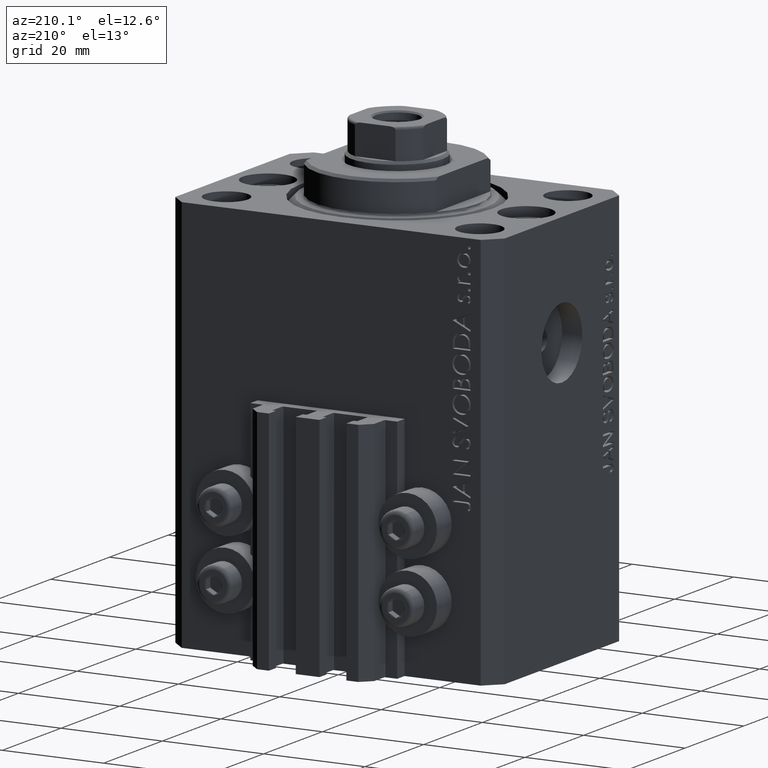
[diagram: clean part render]
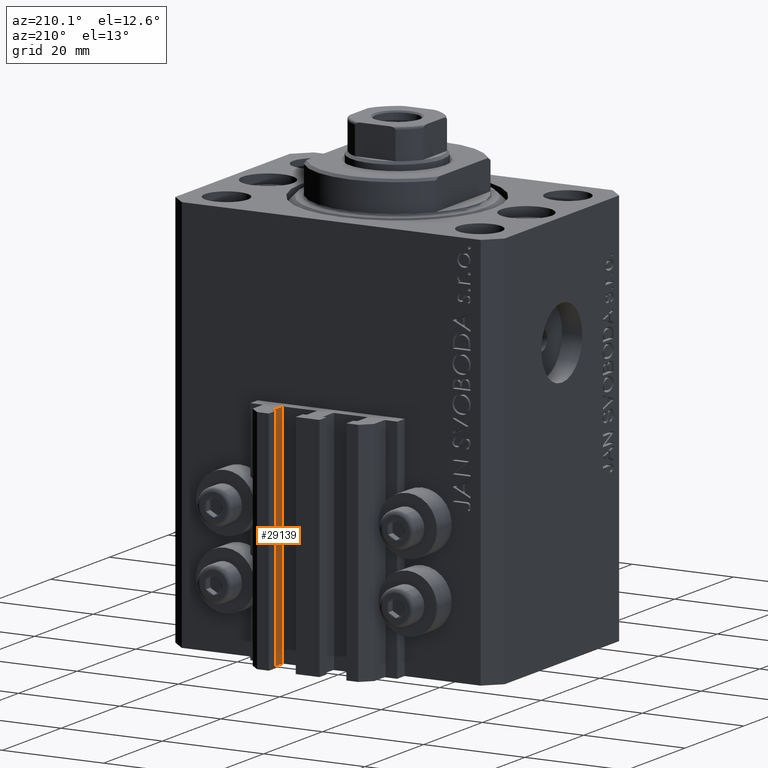
[diagram: same view with one face highlighted and labeled with its STEP entity id]
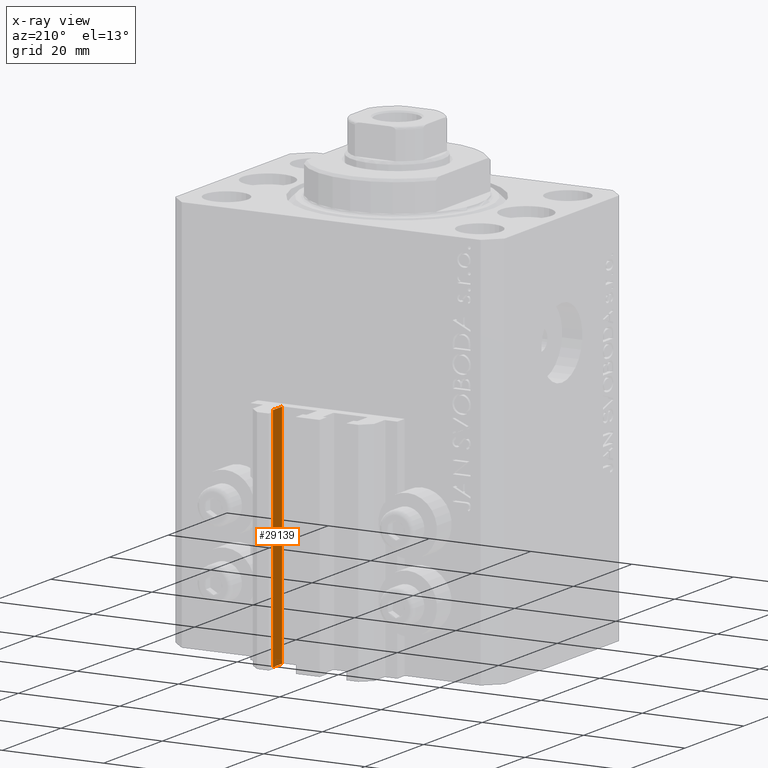
[diagram: x-ray of the same camera — body ghosted, the highlighted face saturated]
A machine part, auxiliary view. The second image highlights one B-rep face of the part: STEP entity #29139.
The next image is the same camera in x-ray: the body ghosted, the highlighted face saturated — about 0% of this face is hidden behind the body in this view.
In plain terms, the highlighted planar face has unit normal (-1, 0, 0).
Its self-contained STEP definition (entity closure, byte-faithful):
#397 = CARTESIAN_POINT ( 'NONE',  ( 8.400000000000000355, 27.89999999999950475, -78.00000000000000000 ) ) ;
#776 = AXIS2_PLACEMENT_3D ( 'NONE', #397, #33328, #26183 ) ;
#938 = LINE ( 'NONE', #22419, #46013 ) ;
#4221 = FACE_OUTER_BOUND ( 'NONE', #36326, .T. ) ;
#4693 = PLANE ( 'NONE',  #776 ) ;
#7262 = CARTESIAN_POINT ( 'NONE',  ( 8.400000000000000355, 24.69999999999949125, -33.00000000000000000 ) ) ;
#8581 = EDGE_CURVE ( 'NONE', #44733, #11599, #938, .T. ) ;
#8821 = VERTEX_POINT ( 'NONE', #36678 ) ;
#9038 = ORIENTED_EDGE ( 'NONE', *, *, #32072, .T. ) ;
#10187 = ORIENTED_EDGE ( 'NONE', *, *, #34627, .F. ) ;
#11086 = LINE ( 'NONE', #25640, #34398 ) ;
#11599 = VERTEX_POINT ( 'NONE', #16526 ) ;
#14053 = DIRECTION ( 'NONE',  ( -5.421010862427496532E-16, -1.000000000000000000, 0.000000000000000000 ) ) ;
#15448 = CARTESIAN_POINT ( 'NONE',  ( 8.400000000000000355, 27.89999999999950475, -78.00000000000000000 ) ) ;
#15945 = CARTESIAN_POINT ( 'NONE',  ( 8.400000000000000355, 27.89999999999950475, -78.00000000000000000 ) ) ;
#16526 = CARTESIAN_POINT ( 'NONE',  ( 8.400000000000000355, 24.69999999999949125, -78.00000000000000000 ) ) ;
#17633 = CARTESIAN_POINT ( 'NONE',  ( 8.400000000000000355, 27.89999999999950475, -33.00000000000000000 ) ) ;
#19107 = VECTOR ( 'NONE', #14053, 1000.000000000000000 ) ;
#22272 = VECTOR ( 'NONE', #30491, 1000.000000000000000 ) ;
#22419 = CARTESIAN_POINT ( 'NONE',  ( 8.400000000000000355, 27.89999999999950475, -78.00000000000000000 ) ) ;
#25640 = CARTESIAN_POINT ( 'NONE',  ( 8.400000000000000355, 24.69999999999949125, -78.00000000000000000 ) ) ;
#26118 = DIRECTION ( 'NONE',  ( 0.000000000000000000, 0.000000000000000000, 1.000000000000000000 ) ) ;
#26183 = DIRECTION ( 'NONE',  ( -5.421010862427496532E-16, -1.000000000000000000, 0.000000000000000000 ) ) ;
#28591 = VERTEX_POINT ( 'NONE', #7262 ) ;
#29139 = ADVANCED_FACE ( 'NONE', ( #4221 ), #4693, .T. ) ;
#30491 = DIRECTION ( 'NONE',  ( 0.000000000000000000, 0.000000000000000000, 1.000000000000000000 ) ) ;
#30498 = EDGE_CURVE ( 'NONE', #8821, #28591, #46738, .T. ) ;
#32072 = EDGE_CURVE ( 'NONE', #11599, #28591, #11086, .T. ) ;
#33328 = DIRECTION ( 'NONE',  ( -1.000000000000000000, 5.421010862427496532E-16, 0.000000000000000000 ) ) ;
#34071 = LINE ( 'NONE', #15945, #22272 ) ;
#34398 = VECTOR ( 'NONE', #26118, 1000.000000000000000 ) ;
#34627 = EDGE_CURVE ( 'NONE', #44733, #8821, #34071, .T. ) ;
#34720 = ORIENTED_EDGE ( 'NONE', *, *, #8581, .T. ) ;
#36326 = EDGE_LOOP ( 'NONE', ( #37407, #10187, #34720, #9038 ) ) ;
#36678 = CARTESIAN_POINT ( 'NONE',  ( 8.400000000000000355, 27.89999999999950475, -33.00000000000000000 ) ) ;
#37407 = ORIENTED_EDGE ( 'NONE', *, *, #30498, .F. ) ;
#39831 = DIRECTION ( 'NONE',  ( -5.421010862427496532E-16, -1.000000000000000000, 0.000000000000000000 ) ) ;
#44733 = VERTEX_POINT ( 'NONE', #15448 ) ;
#46013 = VECTOR ( 'NONE', #39831, 1000.000000000000000 ) ;
#46738 = LINE ( 'NONE', #17633, #19107 ) ;